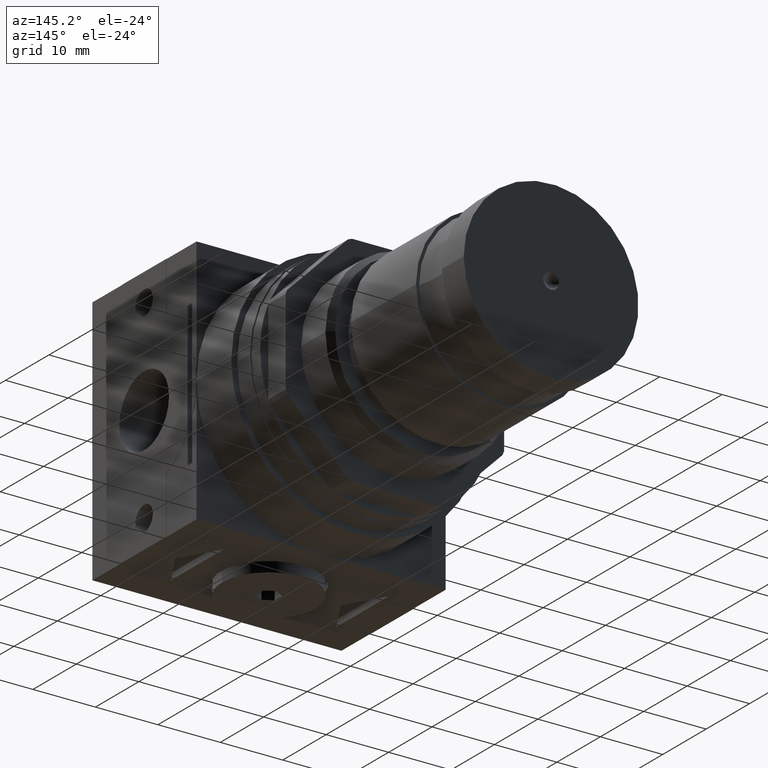
[diagram: clean part render]
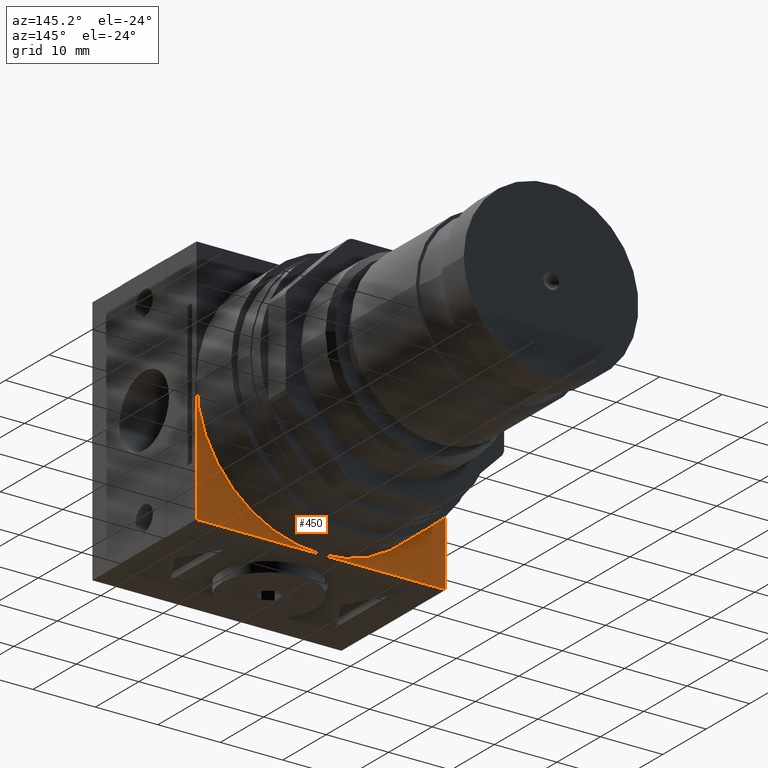
[diagram: same view with one face highlighted and labeled with its STEP entity id]
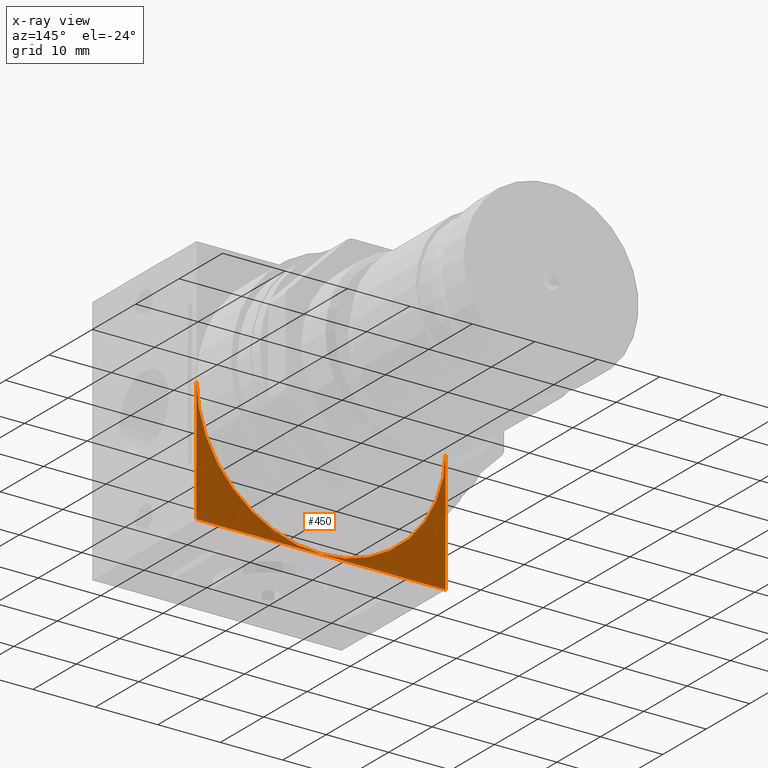
[diagram: x-ray of the same camera — body ghosted, the highlighted face saturated]
A machine part, auxiliary view. The second image highlights one B-rep face of the part: STEP entity #450.
The next image is the same camera in x-ray: the body ghosted, the highlighted face saturated — about 7% of this face is hidden behind the body in this view.
In plain terms, the highlighted planar face has unit normal (0, -1, 0).
Its self-contained STEP definition (entity closure, byte-faithful):
#450 = ADVANCED_FACE( '', ( #909 ), #910, .F. );
#909 = FACE_OUTER_BOUND( '', #1354, .T. );
#910 = PLANE( '', #1355 );
#1354 = EDGE_LOOP( '', ( #2351, #2352, #2353, #2354 ) );
#1355 = AXIS2_PLACEMENT_3D( '', #2355, #2356, #2357 );
#2351 = ORIENTED_EDGE( '', *, *, #2742, .F. );
#2352 = ORIENTED_EDGE( '', *, *, #2654, .F. );
#2353 = ORIENTED_EDGE( '', *, *, #2789, .T. );
#2354 = ORIENTED_EDGE( '', *, *, #2649, .T. );
#2355 = CARTESIAN_POINT( '', ( 19.9500000000000, 12.0000000000000, -20.0000000000000 ) );
#2356 = DIRECTION( '', ( 0.000000000000000, -1.00000000000000, 0.000000000000000 ) );
#2357 = DIRECTION( '', ( 0.000000000000000, 0.000000000000000, -1.00000000000000 ) );
#2649 = EDGE_CURVE( '', #3187, #2982, #3188, .T. );
#2654 = EDGE_CURVE( '', #3193, #3195, #3196, .T. );
#2742 = EDGE_CURVE( '', #3195, #2982, #3306, .F. );
#2789 = EDGE_CURVE( '', #3193, #3187, #3359, .T. );
#2982 = VERTEX_POINT( '', #3610 );
#3187 = VERTEX_POINT( '', #3869 );
#3188 = LINE( '', #3870, #3871 );
#3193 = VERTEX_POINT( '', #3878 );
#3195 = VERTEX_POINT( '', #3881 );
#3196 = LINE( '', #3882, #3883 );
#3306 = CIRCLE( '', #4039, 19.9500000000000 );
#3359 = LINE( '', #4109, #4110 );
#3610 = CARTESIAN_POINT( '', ( -19.9500000000000, 12.0000000000000, 0.000000000000000 ) );
#3869 = CARTESIAN_POINT( '', ( -19.9500000000000, 12.0000000000000, -20.0000000000000 ) );
#3870 = CARTESIAN_POINT( '', ( -19.9500000000000, 12.0000000000000, -20.0000000000000 ) );
#3871 = VECTOR( '', #4430, 1000.00000000000 );
#3878 = CARTESIAN_POINT( '', ( 19.9500000000000, 12.0000000000000, -20.0000000000000 ) );
#3881 = CARTESIAN_POINT( '', ( 19.9500000000000, 12.0000000000000, -1.84242419865797E-015 ) );
#3882 = CARTESIAN_POINT( '', ( 19.9500000000000, 12.0000000000000, -20.0000000000000 ) );
#3883 = VECTOR( '', #4434, 1000.00000000000 );
#4039 = AXIS2_PLACEMENT_3D( '', #4508, #4509, #4510 );
#4109 = CARTESIAN_POINT( '', ( 19.9500000000000, 12.0000000000000, -20.0000000000000 ) );
#4110 = VECTOR( '', #4549, 1000.00000000000 );
#4430 = DIRECTION( '', ( 0.000000000000000, 0.000000000000000, 1.00000000000000 ) );
#4434 = DIRECTION( '', ( 0.000000000000000, 0.000000000000000, 1.00000000000000 ) );
#4508 = CARTESIAN_POINT( '', ( 0.000000000000000, 12.0000000000000, 0.000000000000000 ) );
#4509 = DIRECTION( '', ( 0.000000000000000, -1.00000000000000, 0.000000000000000 ) );
#4510 = DIRECTION( '', ( 0.000000000000000, 0.000000000000000, -1.00000000000000 ) );
#4549 = DIRECTION( '', ( -1.00000000000000, -0.000000000000000, -0.000000000000000 ) );